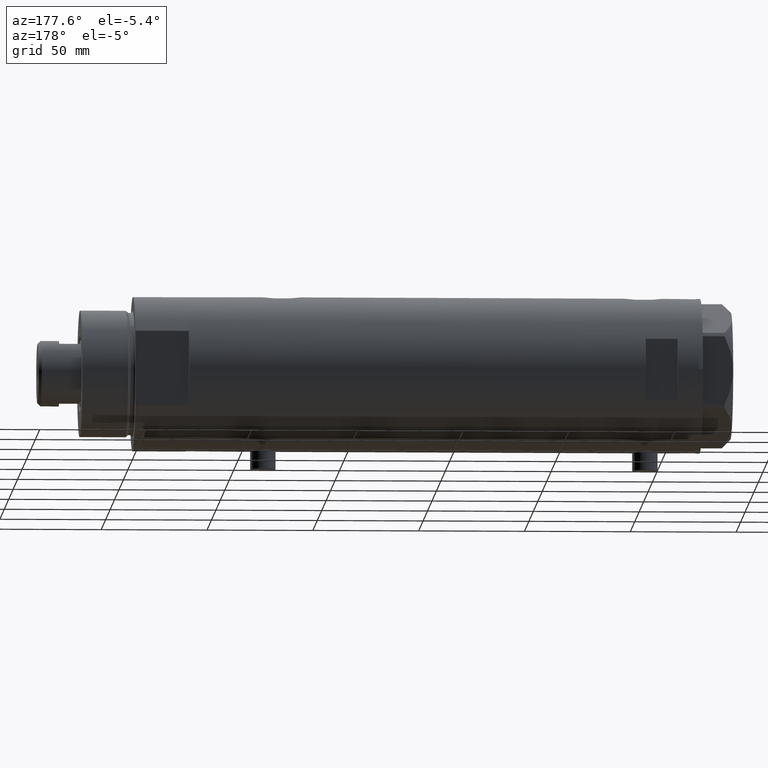
[diagram: clean part render]
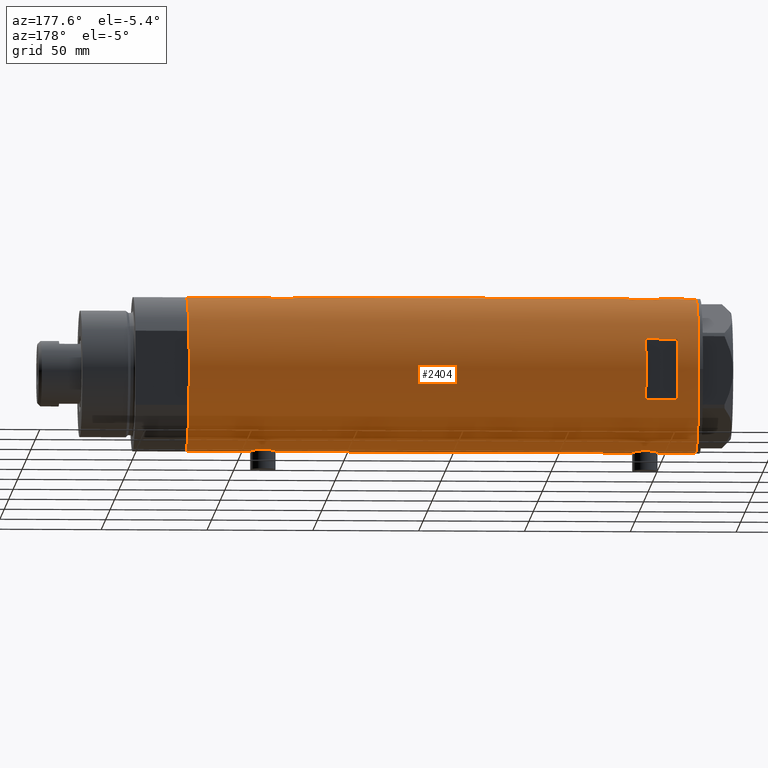
[diagram: same view with one face highlighted and labeled with its STEP entity id]
A machine part, auxiliary view. The second image highlights one B-rep face of the part: STEP entity #2404.
In plain terms, the highlighted cylindrical surface (partial cylindrical patch) has radius 36.5 mm, axis along (-1, -0, 0).
Its self-contained STEP definition (entity closure, byte-faithful):
#17 = ORIENTED_EDGE ( 'NONE', *, *, #3376, .T. ) ;
#29 = DIRECTION ( 'NONE',  ( 0.000000000000000000, 4.625929269271492422E-15, 1.000000000000000000 ) ) ;
#34 = VERTEX_POINT ( 'NONE', #3098 ) ;
#63 = CARTESIAN_POINT ( 'NONE',  ( 35.93456089024232369, 6.410413305453381838, -83.29085963204141763 ) ) ;
#66 = CARTESIAN_POINT ( 'NONE',  ( -36.26643311080166399, 4.132772529026635944, -79.39380594730118901 ) ) ;
#74 = CARTESIAN_POINT ( 'NONE',  ( -36.03936508729894683, 5.782103729777505308, 98.79870532603798949 ) ) ;
#84 = CARTESIAN_POINT ( 'NONE',  ( -36.39522946636253664, 2.769519034821242176, -89.70663923731271439 ) ) ;
#91 = CARTESIAN_POINT ( 'NONE',  ( -36.09617453667821252, 5.415318599347967776, 99.52706642672912096 ) ) ;
#148 = EDGE_CURVE ( 'NONE', #2638, #3763, #3540, .T. ) ;
#156 = CARTESIAN_POINT ( 'NONE',  ( 36.50000000000000000, 4.344614706140975428E-19, -65.60000000000000853 ) ) ;
#165 = CARTESIAN_POINT ( 'NONE',  ( 36.45853166336080875, 1.985123042546145022, 85.54837329582265681 ) ) ;
#268 = B_SPLINE_CURVE_WITH_KNOTS ( 'NONE', 3,
 ( #3117, #2335, #2655, #651, #4398, #935, #599, #962, #329, #3727, #1653, #623, #3049, #1987, #3088, #3391, #3067, #283, #4425, #1313 ),
 .UNSPECIFIED., .F., .F.,
 ( 4, 2, 2, 2, 2, 2, 2, 2, 2, 4 ),
 ( 0.000000000000000000, 0.002977391289382919342, 0.003721739111728640179, 0.004466086934074362316, 0.005954782578765775367, 0.007443478223457188417, 0.008932173868148601467, 0.009676521690494316666, 0.01042086951284003013, 0.01190956515753145012 ),
 .UNSPECIFIED. ) ;
#283 = CARTESIAN_POINT ( 'NONE',  ( 36.48988646280794512, 0.9921857666168139023, 105.3632811513442249 ) ) ;
#284 = CARTESIAN_POINT ( 'NONE',  ( 0.000000000000000000, 0.000000000000000000, -120.4000000000000057 ) ) ;
#290 = DIRECTION ( 'NONE',  ( 0.000000000000000000, 0.000000000000000000, 1.000000000000000000 ) ) ;
#315 = CARTESIAN_POINT ( 'NONE',  ( 36.49999999999999289, 0.4961820988516178477, -65.59999999999999432 ) ) ;
#329 = CARTESIAN_POINT ( 'NONE',  ( 36.00145998247696610, 6.026272765084661032, 103.3955038821238901 ) ) ;
#330 = EDGE_CURVE ( 'NONE', #943, #391, #3245, .T. ) ;
#339 = CARTESIAN_POINT ( 'NONE',  ( 36.50000000000000000, 0.000000000000000000, -120.4000000000000057 ) ) ;
#343 = CARTESIAN_POINT ( 'NONE',  ( -36.49999999999999289, 0.4083036190459308212, -90.34999999999998010 ) ) ;
#350 = CARTESIAN_POINT ( 'NONE',  ( -36.50000000000000000, 4.469960816887838430E-15, -120.4000000000000057 ) ) ;
#370 = DIRECTION ( 'NONE',  ( -0.000000000000000000, -0.000000000000000000, -1.000000000000000000 ) ) ;
#372 = CARTESIAN_POINT ( 'NONE',  ( -36.36688032967140316, 3.133094607697482825, -78.67663567362490085 ) ) ;
#391 = VERTEX_POINT ( 'NONE', #4137 ) ;
#395 = DIRECTION ( 'NONE',  ( 0.000000000000000000, 0.000000000000000000, 1.000000000000000000 ) ) ;
#398 = ORIENTED_EDGE ( 'NONE', *, *, #598, .F. ) ;
#401 = LINE ( 'NONE', #339, #1708 ) ;
#406 = B_SPLINE_CURVE_WITH_KNOTS ( 'NONE', 3,
 ( #555, #3281, #892, #1927, #2591, #2615, #871, #3997, #1134, #2171, #3004, #1680, #2692, #2290, #3073, #4450, #1339, #628, #315, #605 ),
 .UNSPECIFIED., .F., .F.,
 ( 4, 2, 2, 2, 2, 2, 2, 2, 2, 4 ),
 ( 0.000000000000000000, 0.002977391289382919342, 0.003721739111728640179, 0.004466086934074362316, 0.005954782578765775367, 0.007443478223457188417, 0.008932173868148601467, 0.009676521690494316666, 0.01042086951284003013, 0.01190956515753145012 ),
 .UNSPECIFIED. ) ;
#408 = CARTESIAN_POINT ( 'NONE',  ( 36.00287854058830561, 6.017835360302999703, -83.60188117181724010 ) ) ;
#421 = CARTESIAN_POINT ( 'NONE',  ( -36.46462099658055678, 1.618684470865507041, 102.4402439702484742 ) ) ;
#433 = CARTESIAN_POINT ( 'NONE',  ( -36.44628644024909647, 2.015372769639941275, -90.03028128013588116 ) ) ;
#457 = CARTESIAN_POINT ( 'NONE',  ( 14.49137674618942739, 33.50000000000000000, 110.3999999999999915 ) ) ;
#460 = EDGE_CURVE ( 'NONE', #1084, #4041, #1127, .T. ) ;
#469 = LINE ( 'NONE', #3596, #3034 ) ;
#471 = FACE_BOUND ( 'NONE', #1973, .T. ) ;
#476 = EDGE_CURVE ( 'NONE', #3914, #4201, #1088, .T. ) ;
#494 = CARTESIAN_POINT ( 'NONE',  ( 36.26917563968160607, 4.104523505324181087, -84.72215988367473471 ) ) ;
#503 = CARTESIAN_POINT ( 'NONE',  ( -36.39522946636253664, 2.769519034821242176, 90.79336076268728561 ) ) ;
#508 = CARTESIAN_POINT ( 'NONE',  ( -36.50000000000000000, 1.603939656238031057E-15, -77.85000000000000853 ) ) ;
#529 = CARTESIAN_POINT ( 'NONE',  ( -36.40902375114221456, 2.582415566883930591, 90.70478308530314848 ) ) ;
#531 = ORIENTED_EDGE ( 'NONE', *, *, #330, .T. ) ;
#555 = CARTESIAN_POINT ( 'NONE',  ( 35.29999999999999716, 9.282241108697837362, -71.87978495245236843 ) ) ;
#560 = CARTESIAN_POINT ( 'NONE',  ( 36.34070350304396868, 3.414301401755543974, 85.99763782624094688 ) ) ;
#573 = EDGE_CURVE ( 'NONE', #1210, #1239, #2816, .T. ) ;
#578 = CARTESIAN_POINT ( 'NONE',  ( -36.49292802938585822, 0.8230716655928924652, 90.19093061246485377 ) ) ;
#587 = ORIENTED_EDGE ( 'NONE', *, *, #573, .F. ) ;
#598 = EDGE_CURVE ( 'NONE', #2764, #3566, #1283, .T. ) ;
#599 = CARTESIAN_POINT ( 'NONE',  ( 35.83170458557578542, 6.955065627744199119, 102.5894167191246424 ) ) ;
#605 = CARTESIAN_POINT ( 'NONE',  ( 36.50000000000000000, 4.344614706140975428E-19, -65.60000000000000853 ) ) ;
#621 = DIRECTION ( 'NONE',  ( -0.000000000000000000, -0.000000000000000000, -1.000000000000000000 ) ) ;
#623 = CARTESIAN_POINT ( 'NONE',  ( 36.29611582693038940, 3.878758190381173421, 104.6304498909955072 ) ) ;
#628 = CARTESIAN_POINT ( 'NONE',  ( 36.48988646280794512, 0.9921857666168139023, -65.63671884865574668 ) ) ;
#645 = CARTESIAN_POINT ( 'NONE',  ( 35.29999999999999716, 9.282241108697837362, 99.12021504754764578 ) ) ;
#651 = CARTESIAN_POINT ( 'NONE',  ( 35.69321149401851301, 7.633476302278308978, 101.8646307216643976 ) ) ;
#652 = LINE ( 'NONE', #350, #1356 ) ;
#656 = ORIENTED_EDGE ( 'NONE', *, *, #2796, .T. ) ;
#711 = CARTESIAN_POINT ( 'NONE',  ( -36.30181775639987052, 3.813582387016785091, -89.06836057574435017 ) ) ;
#744 = CARTESIAN_POINT ( 'NONE',  ( -36.11199073531170001, 5.309184630646994307, 99.70412840766836382 ) ) ;
#755 = CARTESIAN_POINT ( 'NONE',  ( -36.16126303108062956, 4.966520032693302333, -80.28358772254716769 ) ) ;
#761 = CARTESIAN_POINT ( 'NONE',  ( -36.16126303108062956, 4.966520032693302333, 100.2164122774528323 ) ) ;
#776 = CARTESIAN_POINT ( 'NONE',  ( -36.46598788992680085, 1.625721481788714895, -90.14872046713837506 ) ) ;
#783 = VECTOR ( 'NONE', #621, 1000.000000000000000 ) ;
#805 = ORIENTED_EDGE ( 'NONE', *, *, #2242, .F. ) ;
#826 = CARTESIAN_POINT ( 'NONE',  ( 35.93456089024232369, 6.410413305453381838, 87.70914036795856816 ) ) ;
#834 = CARTESIAN_POINT ( 'NONE',  ( -14.49137674618942739, 33.50000000000000000, -120.4000000000000057 ) ) ;
#840 = CARTESIAN_POINT ( 'NONE',  ( -35.99530513653993324, 6.049346314076207598, 94.77667416964166591 ) ) ;
#871 = CARTESIAN_POINT ( 'NONE',  ( 35.83170458557578542, 6.955065627744199119, -68.41058328087537177 ) ) ;
#889 = CARTESIAN_POINT ( 'NONE',  ( -36.16083474549355259, 4.969527450313384165, 92.58794680877254279 ) ) ;
#892 = CARTESIAN_POINT ( 'NONE',  ( 35.52347503888660896, 8.410566959990466884, -70.10046032740659427 ) ) ;
#896 = CARTESIAN_POINT ( 'NONE',  ( 36.50000000000000000, 0.000000000000000000, 85.40000000000001990 ) ) ;
#929 = CARTESIAN_POINT ( 'NONE',  ( -36.49297130294515057, 0.8204796224394291793, -77.89068307782268619 ) ) ;
#935 = CARTESIAN_POINT ( 'NONE',  ( 35.79715675463678792, 7.130463293899340194, 102.4155558410599696 ) ) ;
#943 = VERTEX_POINT ( 'NONE', #3080 ) ;
#950 = CARTESIAN_POINT ( 'NONE',  ( 35.52737867031126484, 8.373910777960906771, -81.08860356717065088 ) ) ;
#962 = CARTESIAN_POINT ( 'NONE',  ( 35.93435287561198521, 6.411571491280768420, 103.0898864492284304 ) ) ;
#997 = CARTESIAN_POINT ( 'NONE',  ( -36.50000000000000000, 0.4137727629436737664, -77.84999999999999432 ) ) ;
#1006 = DIRECTION ( 'NONE',  ( 0.000000000000000000, 0.000000000000000000, 1.000000000000000000 ) ) ;
#1018 = EDGE_CURVE ( 'NONE', #2402, #2934, #401, .T. ) ;
#1034 = DIRECTION ( 'NONE',  ( 0.000000000000000000, 0.000000000000000000, 1.000000000000000000 ) ) ;
#1049 = LINE ( 'NONE', #2343, #2366 ) ;
#1058 = CARTESIAN_POINT ( 'NONE',  ( -36.09643313249890184, 5.413601294342275771, -87.23007773391852027 ) ) ;
#1084 = VERTEX_POINT ( 'NONE', #1758 ) ;
#1088 = LINE ( 'NONE', #1719, #783 ) ;
#1105 = CARTESIAN_POINT ( 'NONE',  ( -36.11199073531170001, 5.309184630646994307, -80.79587159233167881 ) ) ;
#1114 = ORIENTED_EDGE ( 'NONE', *, *, #1860, .F. ) ;
#1120 = CARTESIAN_POINT ( 'NONE',  ( -35.96088929326157313, 6.250155299092687855, -84.50610494763246550 ) ) ;
#1127 = CIRCLE ( 'NONE', #2584, 36.50000000000000000 ) ;
#1134 = CARTESIAN_POINT ( 'NONE',  ( 36.00145998247696610, 6.026272765084661032, -67.60449611787615254 ) ) ;
#1135 = VECTOR ( 'NONE', #1896, 1000.000000000000000 ) ;
#1151 = DIRECTION ( 'NONE',  ( -0.000000000000000000, -0.000000000000000000, -1.000000000000000000 ) ) ;
#1159 = CARTESIAN_POINT ( 'NONE',  ( 36.18948008481302026, 4.772042575486208804, 86.59822368756844924 ) ) ;
#1165 = CARTESIAN_POINT ( 'NONE',  ( 36.36225053217120973, 3.177096004138049601, -85.08516024475976280 ) ) ;
#1194 = LINE ( 'NONE', #834, #3685 ) ;
#1210 = VERTEX_POINT ( 'NONE', #1958 ) ;
#1227 = CARTESIAN_POINT ( 'NONE',  ( -36.44628644024909647, 2.015372769639941275, 90.46971871986418989 ) ) ;
#1239 = VERTEX_POINT ( 'NONE', #457 ) ;
#1283 = CIRCLE ( 'NONE', #1561, 36.50000000000000000 ) ;
#1313 = CARTESIAN_POINT ( 'NONE',  ( 36.50000000000000000, 4.344614706140975428E-19, 105.4000000000000057 ) ) ;
#1339 = CARTESIAN_POINT ( 'NONE',  ( 36.45954139109321801, 1.735915671103595681, -65.74863218852992475 ) ) ;
#1356 = VECTOR ( 'NONE', #3419, 1000.000000000000000 ) ;
#1381 = CARTESIAN_POINT ( 'NONE',  ( -36.01679413914729366, 5.919813138266330377, -82.08500308952964986 ) ) ;
#1382 = ORIENTED_EDGE ( 'NONE', *, *, #476, .T. ) ;
#1402 = DIRECTION ( 'NONE',  ( 0.000000000000000000, 1.000000000000000000, -4.562560375171875891E-15 ) ) ;
#1428 = CARTESIAN_POINT ( 'NONE',  ( -36.47290054070997201, 1.420408912806973678, 102.4898698166001623 ) ) ;
#1441 = CARTESIAN_POINT ( 'NONE',  ( 35.79766710091575987, 7.135341284989891619, -82.62350520560903533 ) ) ;
#1443 = CARTESIAN_POINT ( 'NONE',  ( -36.50000000000000000, 4.469960493350315609E-15, -90.35000000000000853 ) ) ;
#1452 = CARTESIAN_POINT ( 'NONE',  ( -36.01679413914729366, 5.919813138266330377, 98.41499691047042120 ) ) ;
#1455 = ORIENTED_EDGE ( 'NONE', *, *, #3973, .F. ) ;
#1463 = CARTESIAN_POINT ( 'NONE',  ( -36.40902375114221456, 2.582415566883930591, -89.79521691469687994 ) ) ;
#1476 = LINE ( 'NONE', #1866, #3689 ) ;
#1497 = CARTESIAN_POINT ( 'NONE',  ( 36.26917563968160607, 4.104523505324181087, 86.27784011632525107 ) ) ;
#1532 = CARTESIAN_POINT ( 'NONE',  ( -36.30181775639987052, 3.813582387016785091, 91.43163942425562141 ) ) ;
#1558 = CARTESIAN_POINT ( 'NONE',  ( -36.01524716445113938, 5.931039972055515364, 94.38669268135348034 ) ) ;
#1561 = AXIS2_PLACEMENT_3D ( 'NONE', #4167, #395, #3817 ) ;
#1586 = CARTESIAN_POINT ( 'NONE',  ( -36.19597718496778072, 4.710322426433902976, 92.27148389237986237 ) ) ;
#1622 = CARTESIAN_POINT ( 'NONE',  ( -36.46462099658055678, 1.618684470865507041, -78.05975602975156846 ) ) ;
#1635 = ORIENTED_EDGE ( 'NONE', *, *, #1757, .F. ) ;
#1653 = CARTESIAN_POINT ( 'NONE',  ( 36.18937351723702278, 4.773052864917646687, 104.2013599311884064 ) ) ;
#1666 = B_SPLINE_CURVE_WITH_KNOTS ( 'NONE', 3,
 ( #896, #1862, #165, #2933, #560, #3913, #1497, #1159, #2545, #3931, #826, #2193, #3260, #2368, #1995, #1683, #4454, #4359 ),
 .UNSPECIFIED., .F., .F.,
 ( 4, 2, 2, 2, 2, 2, 2, 2, 4 ),
 ( 1.734723475976807094E-18, 0.002973648994175672518, 0.003717061242719596394, 0.004460473491263520704, 0.005947297988351386670, 0.007434122485439251769, 0.008920946982527117736, 0.01040777147961498283, 0.01189459597670284793 ),
 .UNSPECIFIED. ) ;
#1671 = CARTESIAN_POINT ( 'NONE',  ( -36.50000000000000000, 1.603939656238031057E-15, -77.85000000000000853 ) ) ;
#1680 = CARTESIAN_POINT ( 'NONE',  ( 36.29611582693038940, 3.878758190381173421, -66.36955010900452123 ) ) ;
#1683 = CARTESIAN_POINT ( 'NONE',  ( 35.40502660484481368, 8.876998817796907915, 90.76901275928764790 ) ) ;
#1699 = CARTESIAN_POINT ( 'NONE',  ( 36.50000000000000000, 0.000000000000000000, 120.4000000000000057 ) ) ;
#1708 = VECTOR ( 'NONE', #1034, 1000.000000000000000 ) ;
#1719 = CARTESIAN_POINT ( 'NONE',  ( 35.29999999999999716, 9.282241108697837362, -120.4000000000000057 ) ) ;
#1746 = CARTESIAN_POINT ( 'NONE',  ( -36.49292802938585822, 0.8230716655928924652, -90.30906938753511781 ) ) ;
#1757 = EDGE_CURVE ( 'NONE', #2934, #34, #1666, .T. ) ;
#1758 = CARTESIAN_POINT ( 'NONE',  ( 14.49137674618942917, 33.50000000000000000, 95.40000000000000568 ) ) ;
#1761 = ORIENTED_EDGE ( 'NONE', *, *, #148, .F. ) ;
#1786 = CARTESIAN_POINT ( 'NONE',  ( -35.96094343308265451, 6.249843792257633091, -83.68912889655432252 ) ) ;
#1798 = CARTESIAN_POINT ( 'NONE',  ( -36.43371204571226230, 2.206934156026287841, 102.2509728167099752 ) ) ;
#1809 = CARTESIAN_POINT ( 'NONE',  ( 36.34070350304396868, 3.414301401755543974, -85.00236217375905312 ) ) ;
#1811 = CARTESIAN_POINT ( 'NONE',  ( -36.35033317675380005, 3.306376218664579536, -89.40770719416052259 ) ) ;
#1832 = CARTESIAN_POINT ( 'NONE',  ( -36.44504802628534179, 2.011764947064737630, 102.3209364490851954 ) ) ;
#1860 = EDGE_CURVE ( 'NONE', #2422, #1998, #268, .T. ) ;
#1862 = CARTESIAN_POINT ( 'NONE',  ( 36.50000000000000711, 1.005842003469123336, 85.40000000000003411 ) ) ;
#1866 = CARTESIAN_POINT ( 'NONE',  ( -36.50000000000000000, 4.469960816887838430E-15, -120.4000000000000057 ) ) ;
#1896 = DIRECTION ( 'NONE',  ( 0.000000000000000000, 0.000000000000000000, 1.000000000000000000 ) ) ;
#1927 = CARTESIAN_POINT ( 'NONE',  ( 35.69321149401851301, 7.633476302278308978, -69.13536927833558821 ) ) ;
#1939 = CARTESIAN_POINT ( 'NONE',  ( 35.29999999999999716, 9.282241108697837362, -79.32021504754763441 ) ) ;
#1958 = CARTESIAN_POINT ( 'NONE',  ( -14.49137674618942739, 33.50000000000000000, 110.3999999999999915 ) ) ;
#1973 = EDGE_LOOP ( 'NONE', ( #2024, #2423, #2111, #587 ) ) ;
#1987 = CARTESIAN_POINT ( 'NONE',  ( 36.40008489419980720, 2.709263960908029123, 105.0291810459639095 ) ) ;
#1995 = CARTESIAN_POINT ( 'NONE',  ( 35.52737867031126484, 8.373910777960906771, 89.91139643282933491 ) ) ;
#1998 = VERTEX_POINT ( 'NONE', #2882 ) ;
#2024 = ORIENTED_EDGE ( 'NONE', *, *, #2896, .F. ) ;
#2029 = EDGE_CURVE ( 'NONE', #1239, #1084, #2578, .T. ) ;
#2033 = DIRECTION ( 'NONE',  ( 1.000000000000000000, 0.000000000000000000, 0.000000000000000000 ) ) ;
#2049 = CARTESIAN_POINT ( 'NONE',  ( -36.30200038006936580, 3.811959488093743520, -79.13027895163997982 ) ) ;
#2097 = CARTESIAN_POINT ( 'NONE',  ( -35.99700617875953412, 6.038972911021586398, -82.47666814201681973 ) ) ;
#2103 = CARTESIAN_POINT ( 'NONE',  ( -36.50000000000000000, 0.4137727629436737664, 102.6500000000000057 ) ) ;
#2111 = ORIENTED_EDGE ( 'NONE', *, *, #2029, .F. ) ;
#2122 = CARTESIAN_POINT ( 'NONE',  ( -36.06675137892952421, 5.607935153446978127, 99.16681826008760936 ) ) ;
#2137 = CARTESIAN_POINT ( 'NONE',  ( -36.26695135241003953, 4.128455078791301247, -88.81037591644739848 ) ) ;
#2171 = CARTESIAN_POINT ( 'NONE',  ( 36.12877841835537396, 5.208882251161925936, -67.04946835209707956 ) ) ;
#2193 = CARTESIAN_POINT ( 'NONE',  ( 35.79766710091575987, 7.135341284989891619, 88.37649479439097888 ) ) ;
#2204 = CARTESIAN_POINT ( 'NONE',  ( 36.50000000000000000, 0.000000000000000000, 85.40000000000001990 ) ) ;
#2208 = VECTOR ( 'NONE', #1151, 1000.000000000000000 ) ;
#2211 = CARTESIAN_POINT ( 'NONE',  ( -35.96805604460922723, 6.209309709790234777, 95.57887241731832262 ) ) ;
#2226 = CARTESIAN_POINT ( 'NONE',  ( 35.34894515018992678, 9.096104616284845790, -79.78464083466539591 ) ) ;
#2242 = EDGE_CURVE ( 'NONE', #1998, #2764, #1049, .T. ) ;
#2262 = CARTESIAN_POINT ( 'NONE',  ( -36.35033317675380005, 3.306376218664579536, 91.09229280583950583 ) ) ;
#2271 = CARTESIAN_POINT ( 'NONE',  ( 35.40502660484481368, 8.876998817796907915, -80.23098724071233789 ) ) ;
#2286 = CARTESIAN_POINT ( 'NONE',  ( -35.96088929326157313, 6.250155299092687855, 95.99389505236757714 ) ) ;
#2290 = CARTESIAN_POINT ( 'NONE',  ( 36.40008489419980720, 2.709263960908029123, -65.97081895403607632 ) ) ;
#2305 = CARTESIAN_POINT ( 'NONE',  ( -36.47290054070997201, 1.420408912806973678, -78.01013018339985194 ) ) ;
#2335 = CARTESIAN_POINT ( 'NONE',  ( 35.39804469700249001, 8.909380959553011792, 100.0505316448284532 ) ) ;
#2343 = CARTESIAN_POINT ( 'NONE',  ( 36.50000000000000000, 0.000000000000000000, -120.4000000000000057 ) ) ;
#2344 = ORIENTED_EDGE ( 'NONE', *, *, #2473, .F. ) ;
#2349 = ORIENTED_EDGE ( 'NONE', *, *, #3820, .T. ) ;
#2366 = VECTOR ( 'NONE', #290, 1000.000000000000000 ) ;
#2368 = CARTESIAN_POINT ( 'NONE',  ( 35.59366931936805400, 8.089554397885871495, 89.50072680912188616 ) ) ;
#2380 = CARTESIAN_POINT ( 'NONE',  ( 0.000000000000000000, 0.000000000000000000, -120.4000000000000057 ) ) ;
#2402 = VERTEX_POINT ( 'NONE', #156 ) ;
#2404 = ADVANCED_FACE ( 'NONE', ( #471, #3724 ), #2701, .T. ) ;
#2422 = VERTEX_POINT ( 'NONE', #645 ) ;
#2423 = ORIENTED_EDGE ( 'NONE', *, *, #460, .F. ) ;
#2425 = CARTESIAN_POINT ( 'NONE',  ( -35.99530513653993324, 6.049346314076207598, -85.72332583035837672 ) ) ;
#2455 = CARTESIAN_POINT ( 'NONE',  ( 0.000000000000000000, 0.000000000000000000, 95.40000000000014779 ) ) ;
#2466 = CARTESIAN_POINT ( 'NONE',  ( -36.43371204571226230, 2.206934156026287841, -78.24902718329002482 ) ) ;
#2473 = EDGE_CURVE ( 'NONE', #3954, #3659, #2801, .T. ) ;
#2484 = CARTESIAN_POINT ( 'NONE',  ( -36.19597718496778072, 4.710322426433902976, -88.22851610762016605 ) ) ;
#2493 = CARTESIAN_POINT ( 'NONE',  ( -35.96793274302675059, 6.210029014836887740, 97.21694237679319883 ) ) ;
#2504 = DIRECTION ( 'NONE',  ( 0.000000000000000000, 0.000000000000000000, 1.000000000000000000 ) ) ;
#2509 = DIRECTION ( 'NONE',  ( 1.000000000000000000, 1.776356839400250465E-15, 0.000000000000000000 ) ) ;
#2518 = CARTESIAN_POINT ( 'NONE',  ( -36.50000000000000000, 1.603939656238031057E-15, 102.6500000000000199 ) ) ;
#2519 = CARTESIAN_POINT ( 'NONE',  ( -35.98846897517730525, 6.089479646546502423, 97.82234891546525546 ) ) ;
#2545 = CARTESIAN_POINT ( 'NONE',  ( 36.13018480315372472, 5.199168368309159405, 86.84353501791949270 ) ) ;
#2551 = CARTESIAN_POINT ( 'NONE',  ( 36.29420020483473053, 3.877527130731370342, -84.82098974400292946 ) ) ;
#2556 = CARTESIAN_POINT ( 'NONE',  ( 14.49137674618942739, 33.50000000000000000, -120.4000000000000057 ) ) ;
#2565 = B_SPLINE_CURVE_WITH_KNOTS ( 'NONE', 3,
 ( #3239, #2901, #3533, #1165, #1809, #2551, #494, #3268, #3173, #408, #63, #1441, #2836, #2627, #950, #2271, #2226, #1939 ),
 .UNSPECIFIED., .F., .F.,
 ( 4, 2, 2, 2, 2, 2, 2, 2, 4 ),
 ( 1.734723475976807094E-18, 0.002973648994175672518, 0.003717061242719596394, 0.004460473491263520704, 0.005947297988351386670, 0.007434122485439251769, 0.008920946982527117736, 0.01040777147961498283, 0.01189459597670284793 ),
 .UNSPECIFIED. ) ;
#2572 = DIRECTION ( 'NONE',  ( 0.000000000000000000, 0.000000000000000000, 1.000000000000000000 ) ) ;
#2578 = LINE ( 'NONE', #2556, #2208 ) ;
#2584 = AXIS2_PLACEMENT_3D ( 'NONE', #2455, #29, #1402 ) ;
#2586 = CARTESIAN_POINT ( 'NONE',  ( -36.05296344941216091, 5.695624845616832133, 93.81845143463246472 ) ) ;
#2591 = CARTESIAN_POINT ( 'NONE',  ( 35.72794581931695745, 7.469526493268205058, -68.94660203271739363 ) ) ;
#2593 = VECTOR ( 'NONE', #370, 1000.000000000000000 ) ;
#2597 = VERTEX_POINT ( 'NONE', #3548 ) ;
#2612 = CARTESIAN_POINT ( 'NONE',  ( -36.46598788992680085, 1.625721481788714895, 90.35127953286163915 ) ) ;
#2615 = CARTESIAN_POINT ( 'NONE',  ( 35.79715675463678792, 7.130463293899340194, -68.58444415894004464 ) ) ;
#2627 = CARTESIAN_POINT ( 'NONE',  ( 35.59366931936805400, 8.089554397885871495, -81.49927319087814226 ) ) ;
#2638 = VERTEX_POINT ( 'NONE', #2518 ) ;
#2655 = CARTESIAN_POINT ( 'NONE',  ( 35.52347503888660896, 8.410566959990466884, 100.8995396725934057 ) ) ;
#2692 = CARTESIAN_POINT ( 'NONE',  ( 36.34264078466112124, 3.418717136061403927, -66.18950965959250254 ) ) ;
#2701 = CYLINDRICAL_SURFACE ( 'NONE', #2881, 36.50000000000000000 ) ;
#2713 = ORIENTED_EDGE ( 'NONE', *, *, #3377, .F. ) ;
#2723 = DIRECTION ( 'NONE',  ( 0.000000000000000000, 0.000000000000000000, 1.000000000000000000 ) ) ;
#2764 = VERTEX_POINT ( 'NONE', #1699 ) ;
#2775 = CARTESIAN_POINT ( 'NONE',  ( -36.03936508729894683, 5.782103729777505308, -81.70129467396205314 ) ) ;
#2796 = EDGE_CURVE ( 'NONE', #391, #3659, #652, .T. ) ;
#2801 = B_SPLINE_CURVE_WITH_KNOTS ( 'NONE', 3,
 ( #1671, #997, #929, #2305, #1622, #4392, #2466, #3448, #372, #2049, #66, #2817, #755, #1105, #3874, #2838, #2775, #1381, #2097, #3137, #4210, #1786, #1120, #3154, #2425, #3814, #3175, #3202, #1058, #3515, #3856, #2484, #2137, #711, #1811, #3535, #84, #1463, #433, #776, #1746, #343, #1443 ),
 .UNSPECIFIED., .F., .F.,
 ( 4, 2, 2, 2, 2, 2, 2, 2, 1, 2, 2, 2, 2, 2, 2, 2, 2, 2, 2, 2, 2, 4 ),
 ( 1.558294008431693624E-18, 0.001223527801214140684, 0.001835291701821213954, 0.002447055602428288307, 0.003670583403642434413, 0.004894111204856580084, 0.006117639006070725756, 0.006729402906677815072, 0.007341166807284903520, 0.007952930707891993703, 0.008564694608499082151, 0.009788222409713260783, 0.01101175021092743941, 0.01223527801214161631, 0.01284704191274868568, 0.01345880581335575504, 0.01468233361456989725, 0.01590586141578403945, 0.01651762531639110881, 0.01712938921699818165, 0.01835291701821230650, 0.01957644481942643136 ),
 .UNSPECIFIED. ) ;
#2816 = CIRCLE ( 'NONE', #3754, 36.50000000000000000 ) ;
#2817 = CARTESIAN_POINT ( 'NONE',  ( -36.19624103943463922, 4.708090268046848159, -79.96938778553864324 ) ) ;
#2836 = CARTESIAN_POINT ( 'NONE',  ( 35.72860827204725354, 7.471059959301281417, -82.26525150474411419 ) ) ;
#2838 = CARTESIAN_POINT ( 'NONE',  ( -36.06675137892952421, 5.607935153446978127, -81.33318173991246169 ) ) ;
#2845 = CARTESIAN_POINT ( 'NONE',  ( -35.99700617875953412, 6.038972911021586398, 98.02333185798320869 ) ) ;
#2862 = CARTESIAN_POINT ( 'NONE',  ( -36.50000000000000000, 1.603939656238031057E-15, 102.6500000000000199 ) ) ;
#2881 = AXIS2_PLACEMENT_3D ( 'NONE', #2380, #2723, #2033 ) ;
#2882 = CARTESIAN_POINT ( 'NONE',  ( 36.50000000000000000, 4.344614706140975428E-19, 105.4000000000000057 ) ) ;
#2896 = EDGE_CURVE ( 'NONE', #4041, #1210, #1194, .T. ) ;
#2901 = CARTESIAN_POINT ( 'NONE',  ( 36.50000000000000711, 1.005842003469123336, -85.59999999999999432 ) ) ;
#2933 = CARTESIAN_POINT ( 'NONE',  ( 36.36225053217120973, 3.177096004138049601, 85.91483975524022298 ) ) ;
#2934 = VERTEX_POINT ( 'NONE', #2204 ) ;
#2948 = EDGE_CURVE ( 'NONE', #943, #2597, #3942, .T. ) ;
#2951 = CARTESIAN_POINT ( 'NONE',  ( -36.50000000000000000, 4.469960493350315609E-15, 90.15000000000000568 ) ) ;
#3004 = CARTESIAN_POINT ( 'NONE',  ( 36.18937351723702278, 4.773052864917646687, -66.79864006881156513 ) ) ;
#3034 = VECTOR ( 'NONE', #2504, 1000.000000000000000 ) ;
#3049 = CARTESIAN_POINT ( 'NONE',  ( 36.34264078466112124, 3.418717136061403927, 104.8104903404075543 ) ) ;
#3067 = CARTESIAN_POINT ( 'NONE',  ( 36.45954139109321801, 1.735915671103595681, 105.2513678114701179 ) ) ;
#3073 = CARTESIAN_POINT ( 'NONE',  ( 36.41717583764486932, 2.469534783404761402, -65.90651988824329521 ) ) ;
#3080 = CARTESIAN_POINT ( 'NONE',  ( 36.50000000000000000, 0.000000000000000000, -120.4000000000000057 ) ) ;
#3088 = CARTESIAN_POINT ( 'NONE',  ( 36.41717583764486932, 2.469534783404761402, 105.0934801117567190 ) ) ;
#3098 = CARTESIAN_POINT ( 'NONE',  ( 35.29999999999999716, 9.282241108697837362, 91.67978495245237980 ) ) ;
#3111 = CARTESIAN_POINT ( 'NONE',  ( -36.50000000000000000, 4.469960493350315609E-15, -90.35000000000000853 ) ) ;
#3117 = CARTESIAN_POINT ( 'NONE',  ( 35.29999999999999716, 9.282241108697837362, 99.12021504754764578 ) ) ;
#3136 = CARTESIAN_POINT ( 'NONE',  ( -36.50000000000000000, 4.469960493350315609E-15, 90.15000000000000568 ) ) ;
#3137 = CARTESIAN_POINT ( 'NONE',  ( -35.98846897517730525, 6.089479646546502423, -82.67765108453481560 ) ) ;
#3154 = CARTESIAN_POINT ( 'NONE',  ( -35.96805604460922723, 6.209309709790234777, -84.92112758268174844 ) ) ;
#3173 = CARTESIAN_POINT ( 'NONE',  ( 36.13018480315372472, 5.199168368309159405, -84.15646498208049309 ) ) ;
#3175 = CARTESIAN_POINT ( 'NONE',  ( -36.05296344941216091, 5.695624845616832133, -86.68154856536754949 ) ) ;
#3191 = CARTESIAN_POINT ( 'NONE',  ( -36.36688032967140316, 3.133094607697482825, 101.8233643263751276 ) ) ;
#3202 = CARTESIAN_POINT ( 'NONE',  ( -36.06690560274405044, 5.606949625760674571, -86.86885923958932665 ) ) ;
#3211 = CARTESIAN_POINT ( 'NONE',  ( -36.39638105034455151, 2.774378062517171006, 102.0154333269910296 ) ) ;
#3221 = ORIENTED_EDGE ( 'NONE', *, *, #1018, .F. ) ;
#3239 = CARTESIAN_POINT ( 'NONE',  ( 36.50000000000000000, 0.000000000000000000, -85.59999999999999432 ) ) ;
#3245 = CIRCLE ( 'NONE', #3677, 36.50000000000000000 ) ;
#3260 = CARTESIAN_POINT ( 'NONE',  ( 35.72860827204725354, 7.471059959301281417, 88.73474849525594266 ) ) ;
#3268 = CARTESIAN_POINT ( 'NONE',  ( 36.18948008481302026, 4.772042575486208804, -84.40177631243157919 ) ) ;
#3281 = CARTESIAN_POINT ( 'NONE',  ( 35.39804469700249001, 8.909380959553011792, -70.94946835517158945 ) ) ;
#3302 = ORIENTED_EDGE ( 'NONE', *, *, #2948, .F. ) ;
#3355 = CARTESIAN_POINT ( 'NONE',  ( -36.50000000000000000, 4.469960816887838430E-15, 120.4000000000000057 ) ) ;
#3376 = EDGE_CURVE ( 'NONE', #3954, #3763, #469, .T. ) ;
#3377 = EDGE_CURVE ( 'NONE', #2597, #4201, #2565, .T. ) ;
#3391 = CARTESIAN_POINT ( 'NONE',  ( 36.44688397185920081, 1.983417953489138741, 105.2044995764825757 ) ) ;
#3419 = DIRECTION ( 'NONE',  ( 0.000000000000000000, 0.000000000000000000, 1.000000000000000000 ) ) ;
#3448 = CARTESIAN_POINT ( 'NONE',  ( -36.39638105034455151, 2.774378062517171006, -78.48456667300897038 ) ) ;
#3453 = DIRECTION ( 'NONE',  ( 1.000000000000000000, 0.000000000000000000, 0.000000000000000000 ) ) ;
#3501 = CARTESIAN_POINT ( 'NONE',  ( -36.49297130294515057, 0.8204796224394291793, 102.6093169221773564 ) ) ;
#3515 = CARTESIAN_POINT ( 'NONE',  ( -36.11206433103227198, 5.308658295084048184, -87.40484648040978755 ) ) ;
#3530 = LINE ( 'NONE', #4164, #2593 ) ;
#3533 = CARTESIAN_POINT ( 'NONE',  ( 36.45853166336080875, 1.985123042546145022, -85.45162670417735740 ) ) ;
#3535 = CARTESIAN_POINT ( 'NONE',  ( -36.36587679577595367, 3.131448301962863834, -89.51282465573618197 ) ) ;
#3540 = B_SPLINE_CURVE_WITH_KNOTS ( 'NONE', 3,
 ( #2862, #2103, #3501, #1428, #421, #1832, #1798, #3211, #3191, #3907, #4232, #4178, #761, #744, #91, #2122, #74, #1452, #2845, #2519, #2493, #3881, #2286, #2211, #840, #1558, #2586, #3684, #4281, #3608, #889, #1586, #4351, #1532, #2262, #3948, #503, #529, #1227, #2612, #578, #3710, #2951 ),
 .UNSPECIFIED., .F., .F.,
 ( 4, 2, 2, 2, 2, 2, 2, 2, 1, 2, 2, 2, 2, 2, 2, 2, 2, 2, 2, 2, 2, 4 ),
 ( 1.558294008431693624E-18, 0.001223527801214140684, 0.001835291701821213954, 0.002447055602428288307, 0.003670583403642434413, 0.004894111204856580084, 0.006117639006070725756, 0.006729402906677815072, 0.007341166807284903520, 0.007952930707891993703, 0.008564694608499082151, 0.009788222409713260783, 0.01101175021092743941, 0.01223527801214161631, 0.01284704191274868568, 0.01345880581335575504, 0.01468233361456989725, 0.01590586141578403945, 0.01651762531639110881, 0.01712938921699818165, 0.01835291701821230650, 0.01957644481942643136 ),
 .UNSPECIFIED. ) ;
#3548 = CARTESIAN_POINT ( 'NONE',  ( 36.50000000000000000, 0.000000000000000000, -85.59999999999999432 ) ) ;
#3561 = CARTESIAN_POINT ( 'NONE',  ( 0.000000000000000000, 0.000000000000000000, 110.3999999999999915 ) ) ;
#3566 = VERTEX_POINT ( 'NONE', #3355 ) ;
#3596 = CARTESIAN_POINT ( 'NONE',  ( -36.50000000000000000, 4.469960816887838430E-15, -120.4000000000000057 ) ) ;
#3603 = CARTESIAN_POINT ( 'NONE',  ( 36.50000000000000000, 0.000000000000000000, -120.4000000000000057 ) ) ;
#3608 = CARTESIAN_POINT ( 'NONE',  ( -36.11206433103227198, 5.308658295084048184, 93.09515351959024088 ) ) ;
#3659 = VERTEX_POINT ( 'NONE', #3111 ) ;
#3670 = EDGE_CURVE ( 'NONE', #2422, #34, #3530, .T. ) ;
#3677 = AXIS2_PLACEMENT_3D ( 'NONE', #284, #1006, #3453 ) ;
#3684 = CARTESIAN_POINT ( 'NONE',  ( -36.06690560274405044, 5.606949625760674571, 93.63114076041070177 ) ) ;
#3685 = VECTOR ( 'NONE', #3965, 1000.000000000000000 ) ;
#3689 = VECTOR ( 'NONE', #2572, 1000.000000000000000 ) ;
#3710 = CARTESIAN_POINT ( 'NONE',  ( -36.49999999999999289, 0.4083036190459308212, 90.14999999999997726 ) ) ;
#3724 = FACE_OUTER_BOUND ( 'NONE', #4356, .T. ) ;
#3727 = CARTESIAN_POINT ( 'NONE',  ( 36.12877841835537396, 5.208882251161925936, 103.9505316479029347 ) ) ;
#3754 = AXIS2_PLACEMENT_3D ( 'NONE', #3561, #3839, #2509 ) ;
#3763 = VERTEX_POINT ( 'NONE', #3136 ) ;
#3814 = CARTESIAN_POINT ( 'NONE',  ( -36.01524716445113938, 5.931039972055515364, -86.11330731864657650 ) ) ;
#3817 = DIRECTION ( 'NONE',  ( 1.000000000000000000, 0.000000000000000000, 0.000000000000000000 ) ) ;
#3820 = EDGE_CURVE ( 'NONE', #2638, #3566, #1476, .T. ) ;
#3839 = DIRECTION ( 'NONE',  ( -0.000000000000000000, -0.000000000000000000, -1.000000000000000000 ) ) ;
#3856 = CARTESIAN_POINT ( 'NONE',  ( -36.16083474549355259, 4.969527450313384165, -87.91205319122751405 ) ) ;
#3874 = CARTESIAN_POINT ( 'NONE',  ( -36.09617453667821252, 5.415318599347967776, -80.97293357327090746 ) ) ;
#3881 = CARTESIAN_POINT ( 'NONE',  ( -35.96094343308265451, 6.249843792257633091, 96.81087110344570590 ) ) ;
#3907 = CARTESIAN_POINT ( 'NONE',  ( -36.30200038006936580, 3.811959488093743520, 101.3697210483601197 ) ) ;
#3913 = CARTESIAN_POINT ( 'NONE',  ( 36.29420020483473053, 3.877527130731370342, 86.17901025599708476 ) ) ;
#3914 = VERTEX_POINT ( 'NONE', #4380 ) ;
#3931 = CARTESIAN_POINT ( 'NONE',  ( 36.00287854058830561, 6.017835360302999703, 87.39811882818277411 ) ) ;
#3942 = LINE ( 'NONE', #3603, #1135 ) ;
#3948 = CARTESIAN_POINT ( 'NONE',  ( -36.36587679577595367, 3.131448301962863834, 90.98717534426380382 ) ) ;
#3954 = VERTEX_POINT ( 'NONE', #508 ) ;
#3965 = DIRECTION ( 'NONE',  ( 0.000000000000000000, 0.000000000000000000, 1.000000000000000000 ) ) ;
#3973 = EDGE_CURVE ( 'NONE', #3914, #2402, #406, .T. ) ;
#3997 = CARTESIAN_POINT ( 'NONE',  ( 35.93435287561198521, 6.411571491280768420, -67.91011355077158385 ) ) ;
#4041 = VERTEX_POINT ( 'NONE', #4374 ) ;
#4083 = ORIENTED_EDGE ( 'NONE', *, *, #3670, .T. ) ;
#4137 = CARTESIAN_POINT ( 'NONE',  ( -36.50000000000000000, 4.469960816887838430E-15, -120.4000000000000057 ) ) ;
#4164 = CARTESIAN_POINT ( 'NONE',  ( 35.29999999999999716, 9.282241108697837362, -120.4000000000000057 ) ) ;
#4167 = CARTESIAN_POINT ( 'NONE',  ( 0.000000000000000000, 0.000000000000000000, 120.4000000000000057 ) ) ;
#4178 = CARTESIAN_POINT ( 'NONE',  ( -36.19624103943463922, 4.708090268046848159, 100.5306122144613994 ) ) ;
#4201 = VERTEX_POINT ( 'NONE', #4251 ) ;
#4210 = CARTESIAN_POINT ( 'NONE',  ( -35.96793274302675059, 6.210029014836887740, -83.28305762320685801 ) ) ;
#4232 = CARTESIAN_POINT ( 'NONE',  ( -36.26643311080166399, 4.132772529026635944, 101.1061940526988536 ) ) ;
#4251 = CARTESIAN_POINT ( 'NONE',  ( 35.29999999999999716, 9.282241108697837362, -79.32021504754763441 ) ) ;
#4281 = CARTESIAN_POINT ( 'NONE',  ( -36.09643313249890184, 5.413601294342275771, 93.26992226608146552 ) ) ;
#4351 = CARTESIAN_POINT ( 'NONE',  ( -36.26695135241003953, 4.128455078791301247, 91.68962408355257310 ) ) ;
#4356 = EDGE_LOOP ( 'NONE', ( #531, #656, #2344, #17, #1761, #2349, #398, #805, #1114, #4083, #1635, #3221, #1455, #1382, #2713, #3302 ) ) ;
#4359 = CARTESIAN_POINT ( 'NONE',  ( 35.29999999999999716, 9.282241108697837362, 91.67978495245237980 ) ) ;
#4374 = CARTESIAN_POINT ( 'NONE',  ( -14.49137674618942917, 33.50000000000000000, 95.40000000000000568 ) ) ;
#4380 = CARTESIAN_POINT ( 'NONE',  ( 35.29999999999999716, 9.282241108697837362, -71.87978495245236843 ) ) ;
#4392 = CARTESIAN_POINT ( 'NONE',  ( -36.44504802628534179, 2.011764947064737630, -78.17906355091480464 ) ) ;
#4398 = CARTESIAN_POINT ( 'NONE',  ( 35.72794581931695745, 7.469526493268205058, 102.0533979672826490 ) ) ;
#4425 = CARTESIAN_POINT ( 'NONE',  ( 36.49999999999999289, 0.4961820988516178477, 105.3999999999999915 ) ) ;
#4450 = CARTESIAN_POINT ( 'NONE',  ( 36.44688397185920081, 1.983417953489138741, -65.79550042351749539 ) ) ;
#4454 = CARTESIAN_POINT ( 'NONE',  ( 35.34894515018992678, 9.096104616284845790, 91.21535916533457566 ) ) ;